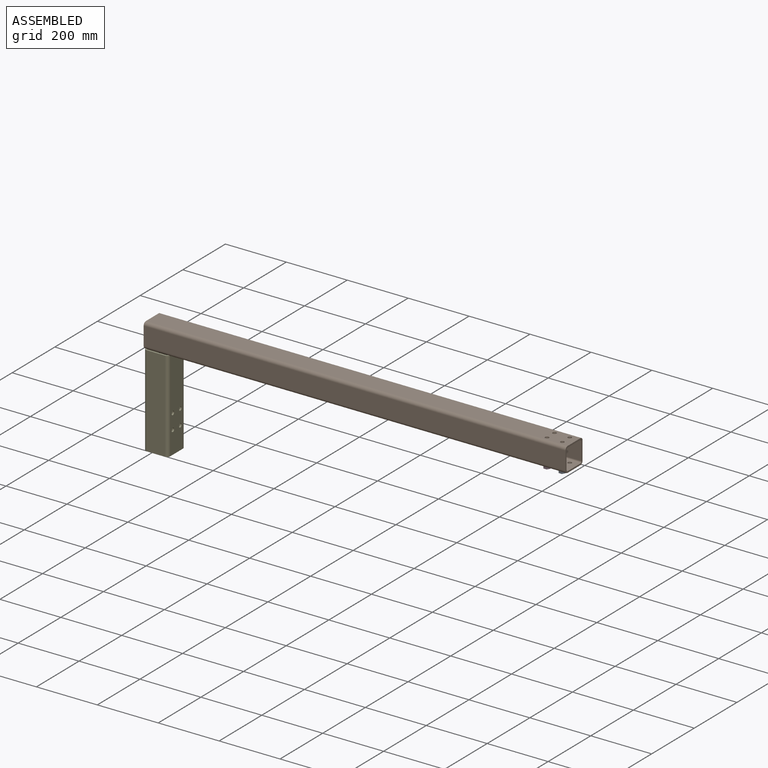
[diagram: assembled view]
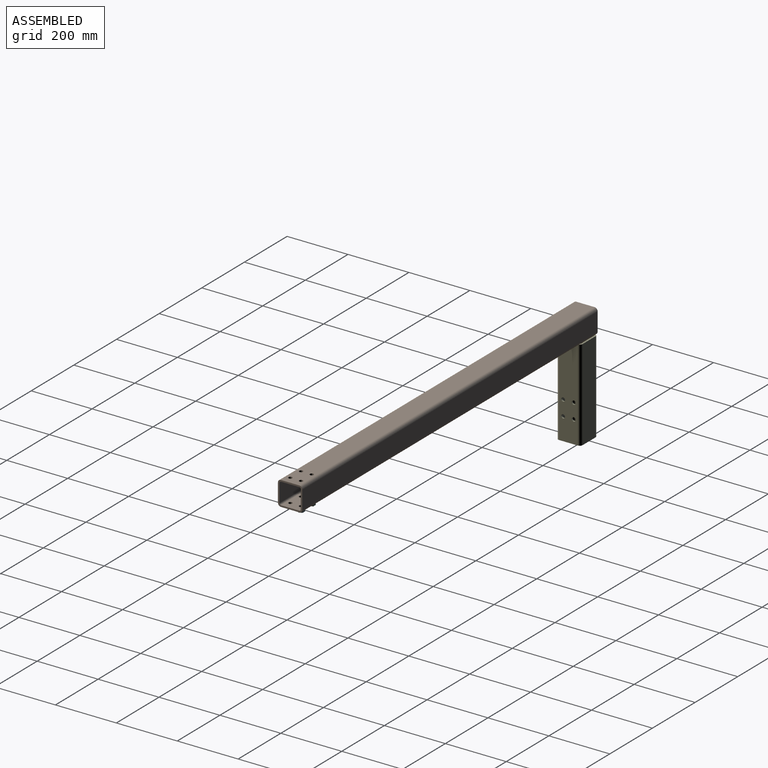
[diagram: assembled view, second angle]
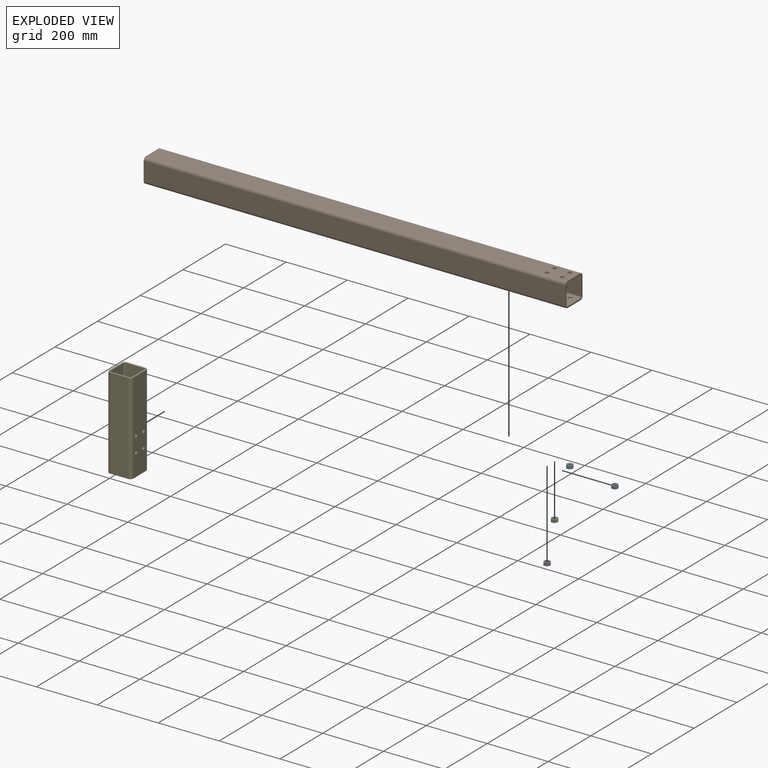
[diagram: exploded view]
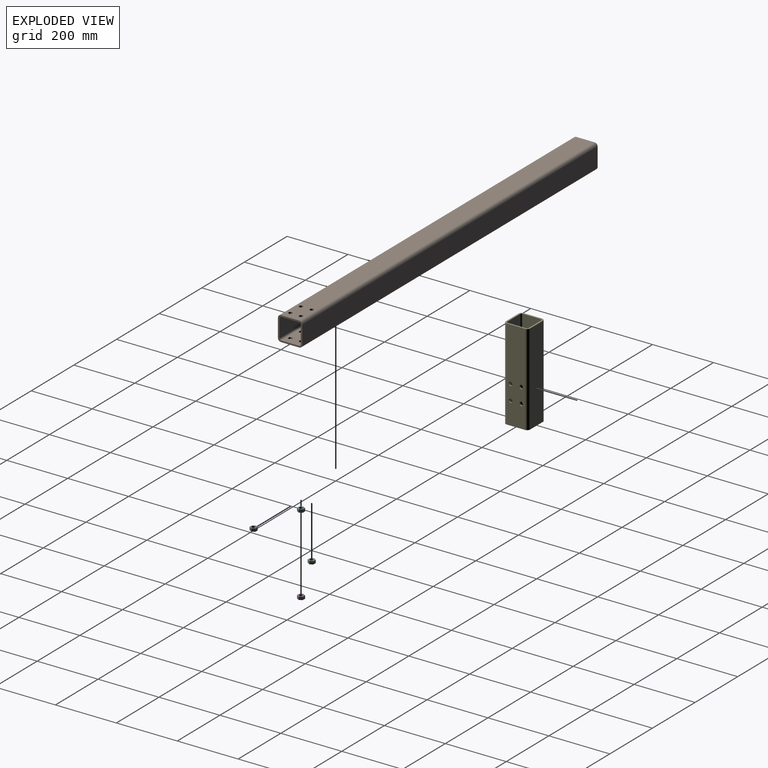
[diagram: exploded view, second angle]
ASSEMBLY  parts=6 mates=4
PART A: 9 faces, bbox 21.9x10x19 mm
  f0: plane 10.97x10mm, normal (0,0,-1), area 109.7mm2, adj f1,f6,f7,f8
  f1: plane 10x9.5mm, normal (0.87,0,-0.5), area 109.7mm2, adj f0,f2,f7,f8
  f2: plane 10x9.5mm, normal (0.87,0,0.5), area 109.7mm2, adj f1,f3,f7,f8
  f3: plane 10.97x10mm, normal (0,0,1), area 109.7mm2, adj f2,f4,f7,f8
  f4: plane 10x9.5mm, normal (-0.87,0,0.5), area 109.7mm2, adj f3,f6,f7,f8
  f5: cylinder r=6mm len=12mm, axis (0,1,0), area 377mm2, adj f7,f8
  f6: plane 10x9.5mm, normal (-0.87,0,-0.5), area 109.7mm2, adj f0,f4,f7,f8
  f7: plane 21.94x19mm, normal (0,-1,0), area 199.5mm2, adj f0,f1,f2,f3,f4,f5,f6
  f8: plane 21.94x19mm, normal (0,1,0), area 199.5mm2, adj f0,f1,f2,f3,f4,f5,f6
PART B: 26 faces, bbox 1385x80x80 mm
  f0: plane 1385x60mm, normal (0,0,1), area 82609.1mm2, adj f4,f5,f16,f17,f22,f23,f24,f25
  f1: plane 1385x60mm, normal (0,0,-1), area 82609.1mm2, adj f7,f8,f16,f17,f18,f19,f20,f21
  f2: plane 1385x60mm, normal (0,0,-1), area 82609.1mm2, adj f9,f14,f16,f17,f22,f23,f24,f25
  f3: plane 1385x60mm, normal (0,0,1), area 82609.1mm2, adj f11,f12,f16,f17,f18,f19,f20,f21
  f4: cylinder r=5mm len=1385mm, axis (-1,0,0), area 10877.8mm2, adj f0,f15,f16,f17
  f5: cylinder r=5mm len=1385mm, axis (-1,0,0), area 10877.8mm2, adj f0,f6,f16,f17
  f6: plane 1385x60mm, normal (0,1,0), area 83100mm2, adj f5,f7,f16,f17
  f7: cylinder r=5mm len=1385mm, axis (-1,0,0), area 10877.8mm2, adj f1,f6,f16,f17
  f8: cylinder r=5mm len=1385mm, axis (-1,0,0), area 10877.8mm2, adj f1,f15,f16,f17
  f9: cylinder r=10mm len=1385mm, axis (-1,0,0), area 21755.5mm2, adj f2,f10,f16,f17
  f10: plane 1385x60mm, normal (0,1,0), area 83100mm2, adj f9,f11,f16,f17
  f11: cylinder r=10mm len=1385mm, axis (-1,0,0), area 21755.5mm2, adj f3,f10,f16,f17
  f12: cylinder r=10mm len=1385mm, axis (-1,0,0), area 21755.5mm2, adj f3,f13,f16,f17
  f13: plane 1385x60mm, normal (0,-1,0), area 83100mm2, adj f12,f14,f16,f17
  f14: cylinder r=10mm len=1385mm, axis (-1,0,0), area 21755.5mm2, adj f2,f13,f16,f17
  f15: plane 1385x60mm, normal (0,-1,0), area 83100mm2, adj f4,f8,f16,f17
  f16: plane 80x80mm, normal (1,0,0), area 1435.6mm2, adj f0,f1,f2,f3,f4,f5,f6,f7
  f17: plane 80x80mm, normal (-1,0,0), area 1435.6mm2, adj f0,f1,f2,f3,f4,f5,f6,f7
  f18: cylinder r=6.25mm len=12.5mm, axis (0,0,1), area 196.3mm2, adj f1,f3
  f19: cylinder r=6.25mm len=12.5mm, axis (0,0,1), area 196.3mm2, adj f1,f3
  f20: cylinder r=6.25mm len=12.5mm, axis (0,0,1), area 196.3mm2, adj f1,f3
  f21: cylinder r=6.25mm len=12.5mm, axis (0,0,1), area 196.3mm2, adj f1,f3
  f22: cylinder r=6.25mm len=12.5mm, axis (0,0,1), area 196.3mm2, adj f0,f2
  f23: cylinder r=6.25mm len=12.5mm, axis (0,0,1), area 196.3mm2, adj f0,f2
  f24: cylinder r=6.25mm len=12.5mm, axis (0,0,1), area 196.3mm2, adj f0,f2
  f25: cylinder r=6.25mm len=12.5mm, axis (0,0,1), area 196.3mm2, adj f0,f2
PART C: same geometry as A
PART D: same geometry as A
PART E: 26 faces, bbox 80x80x300 mm
  f0: plane 300x60mm, normal (0,-1,0), area 17509.1mm2, adj f12,f13,f16,f17,f22,f23,f24,f25
  f1: plane 300x60mm, normal (0,1,0), area 17509.1mm2, adj f4,f5,f16,f17,f22,f23,f24,f25
  f2: plane 300x60mm, normal (0,-1,0), area 17509.1mm2, adj f7,f8,f16,f17,f18,f19,f20,f21
  f3: plane 300x60mm, normal (0,1,0), area 17509.1mm2, adj f9,f10,f16,f17,f18,f19,f20,f21
  f4: cylinder r=5mm len=300mm, axis (0,0,-1), area 2356.2mm2, adj f1,f15,f16,f17
  f5: cylinder r=5mm len=300mm, axis (0,0,-1), area 2356.2mm2, adj f1,f6,f16,f17
  f6: plane 300x60mm, normal (1,0,0), area 18000mm2, adj f5,f7,f16,f17
  f7: cylinder r=5mm len=300mm, axis (0,0,-1), area 2356.2mm2, adj f2,f6,f16,f17
  f8: cylinder r=5mm len=300mm, axis (0,0,-1), area 2356.2mm2, adj f2,f15,f16,f17
  f9: cylinder r=10mm len=300mm, axis (0,0,-1), area 4712.4mm2, adj f3,f14,f16,f17
  f10: cylinder r=10mm len=300mm, axis (0,0,-1), area 4712.4mm2, adj f3,f11,f16,f17
  f11: plane 300x60mm, normal (-1,0,0), area 18000mm2, adj f10,f12,f16,f17
  f12: cylinder r=10mm len=300mm, axis (0,0,-1), area 4712.4mm2, adj f0,f11,f16,f17
  f13: cylinder r=10mm len=300mm, axis (0,0,-1), area 4712.4mm2, adj f0,f14,f16,f17
  f14: plane 300x60mm, normal (1,0,0), area 18000mm2, adj f9,f13,f16,f17
  f15: plane 300x60mm, normal (-1,0,0), area 18000mm2, adj f4,f8,f16,f17
  f16: plane 80x80mm, normal (0,0,1), area 1435.6mm2, adj f0,f1,f2,f3,f4,f5,f6,f7
  f17: plane 80x80mm, normal (0,0,-1), area 1435.6mm2, adj f0,f1,f2,f3,f4,f5,f6,f7
  f18: cylinder r=6.25mm len=12.5mm, axis (0,-1,0), area 196.3mm2, adj f2,f3
  f19: cylinder r=6.25mm len=12.5mm, axis (0,-1,0), area 196.3mm2, adj f2,f3
  f20: cylinder r=6.25mm len=12.5mm, axis (0,-1,0), area 196.3mm2, adj f2,f3
  f21: cylinder r=6.25mm len=12.5mm, axis (0,-1,0), area 196.3mm2, adj f2,f3
  f22: cylinder r=6.25mm len=12.5mm, axis (0,-1,0), area 196.3mm2, adj f0,f1
  f23: cylinder r=6.25mm len=12.5mm, axis (0,-1,0), area 196.3mm2, adj f0,f1
  f24: cylinder r=6.25mm len=12.5mm, axis (0,-1,0), area 196.3mm2, adj f0,f1
  f25: cylinder r=6.25mm len=12.5mm, axis (0,-1,0), area 196.3mm2, adj f0,f1
PART F: same geometry as A
PLACE A rot(axis=(1,0,0),90deg) t=(1358.75,-17.5,-40)mm
PLACE B at identity fixed
PLACE C rot(axis=(1,0,0),90deg) t=(1308.75,17.5,-40)mm
PLACE D rot(axis=(1,0,0),90deg) t=(1308.75,-17.5,-40)mm
PLACE E rot(axis=(0,0,-1),90deg) t=(40,0,-340)mm
PLACE F rot(axis=(1,0,0),90deg) t=(1358.75,17.5,-40)mm
MATE fastened D.f5 <-> B.f21  axis (0,0,1) through (1308.75,-17.5,-40)mm
MATE planar B.f10 <-> E.f11  axis (0,1,0) through (692.5,40,0)mm
MATE planar E.f16 <-> B.f2  axis (0,0,1) through (10,40,-40)mm
MATE planar E.f0 <-> B.f17  axis (-1,0,0) through (0,0,-188.56)mm
